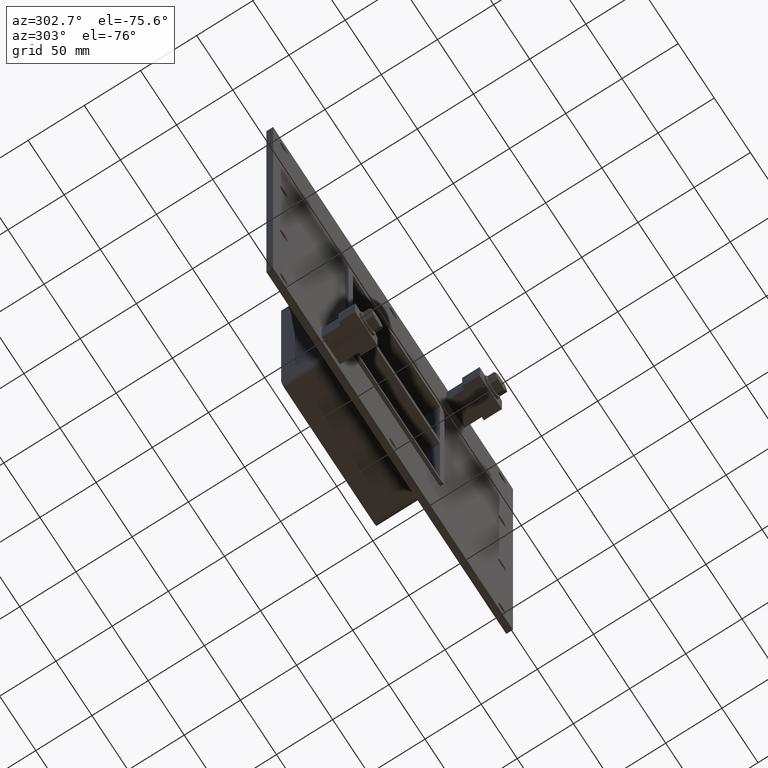
[diagram: clean part render]
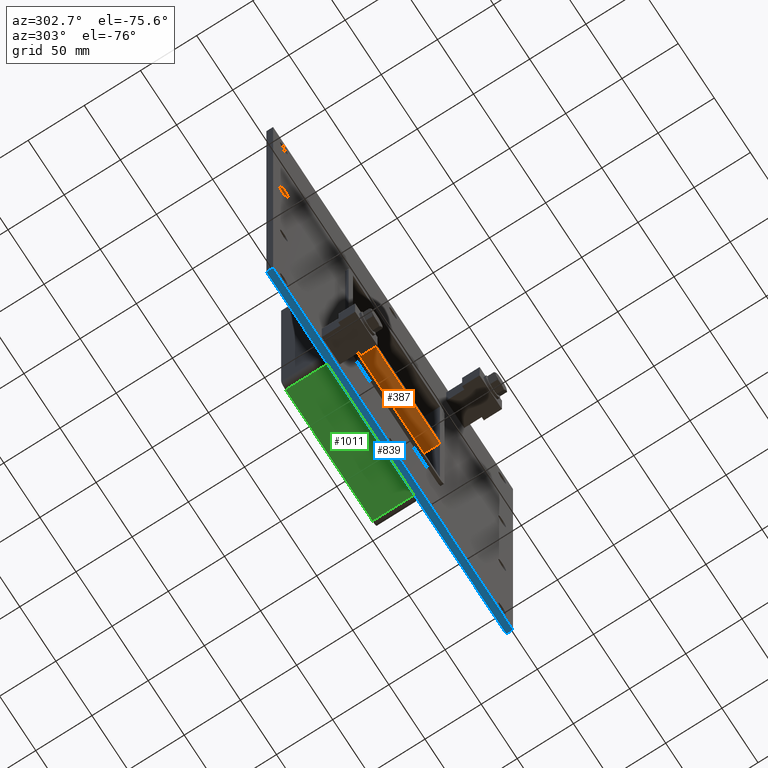
[diagram: same view with three faces highlighted in distinct colors, each labeled with its STEP entity id]
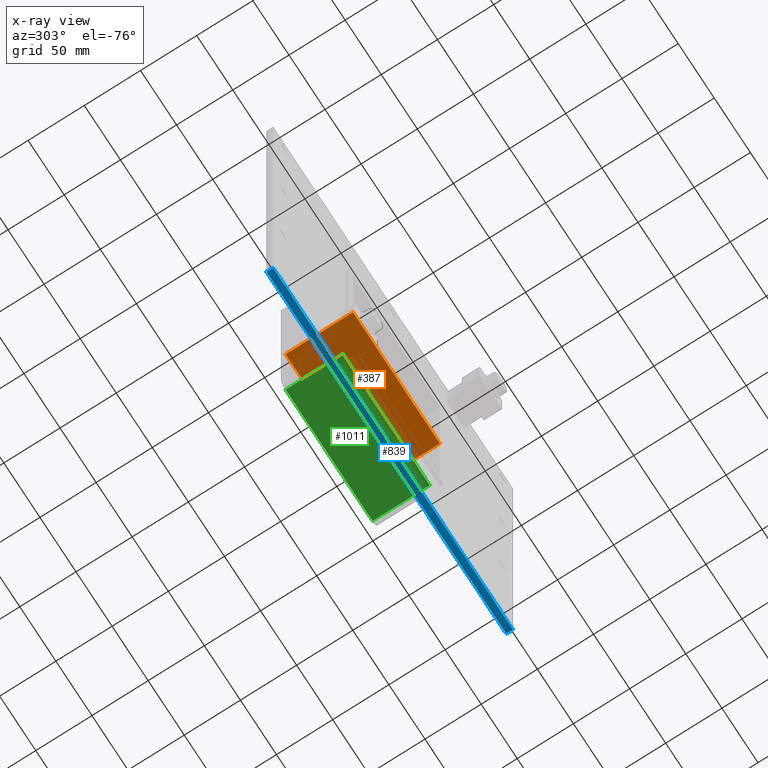
[diagram: x-ray of the same camera — body ghosted, the three highlighted faces saturated]
A machine part, auxiliary view with three faces highlighted in distinct colors.
The next image is the same camera in x-ray (body ghosted, the three faces saturated) — at least one of them is partly hidden behind the body in this view.
Their STEP definitions:

[orange] entity #387 — the highlighted planar face has unit normal (0, 0, -1).
#348=CARTESIAN_POINT('',(60.249999999996362,-3.0,-5.000000000010907));
#349=DIRECTION('',(0.0,0.0,-1.0));
#350=DIRECTION('',(-1.0,0.0,0.0));
#351=AXIS2_PLACEMENT_3D('',#348,#349,#350);
#352=PLANE('',#351);
#353=CARTESIAN_POINT('',(60.249999999996362,-3.0,-5.000000000010907));
#354=VERTEX_POINT('',#353);
#355=CARTESIAN_POINT('',(-60.249999999997627,-3.0,-5.000000000011369));
#356=VERTEX_POINT('',#355);
#357=CARTESIAN_POINT('',(60.249999999996362,-3.0,-5.000000000010907));
#358=DIRECTION('',(-1.0,0.0,0.0));
#359=VECTOR('',#358,120.49999999999399);
#360=LINE('',#357,#359);
#361=EDGE_CURVE('',#354,#356,#360,.T.);
#362=ORIENTED_EDGE('',*,*,#361,.T.);
#363=CARTESIAN_POINT('',(-60.249999999997627,57.0,-5.000000000011369));
#364=VERTEX_POINT('',#363);
#365=CARTESIAN_POINT('',(-60.25,57.000000000000007,-5.000000000011369));
#366=DIRECTION('',(0.0,-1.0,0.0));
#367=VECTOR('',#366,60.000000000000007);
#368=LINE('',#365,#367);
#369=EDGE_CURVE('',#364,#356,#368,.T.);
#370=ORIENTED_EDGE('',*,*,#369,.F.);
#371=CARTESIAN_POINT('',(60.249999999996369,57.0,-5.000000000010907));
#372=VERTEX_POINT('',#371);
#373=CARTESIAN_POINT('',(60.249999999996362,57.0,-5.000000000010907));
#374=DIRECTION('',(-1.0,0.0,0.0));
#375=VECTOR('',#374,120.49999999999399);
#376=LINE('',#373,#375);
#377=EDGE_CURVE('',#372,#364,#376,.T.);
#378=ORIENTED_EDGE('',*,*,#377,.F.);
#379=CARTESIAN_POINT('',(60.249999999999993,-3.0,-5.000000000010907));
#380=DIRECTION('',(0.0,1.0,0.0));
#381=VECTOR('',#380,60.000000000000007);
#382=LINE('',#379,#381);
#383=EDGE_CURVE('',#354,#372,#382,.T.);
#384=ORIENTED_EDGE('',*,*,#383,.F.);
#385=EDGE_LOOP('',(#362,#370,#378,#384));
#386=FACE_OUTER_BOUND('',#385,.T.);
#387=ADVANCED_FACE('',(#386),#352,.T.);

[blue] entity #839 — the highlighted planar face has unit normal (0, 0, -1).
#536=CARTESIAN_POINT('',(166.25,6.000000000000001,-212.00000000000003));
#537=VERTEX_POINT('',#536);
#544=CARTESIAN_POINT('',(-166.25,6.000000000000001,-212.00000000000003));
#545=VERTEX_POINT('',#544);
#546=CARTESIAN_POINT('',(166.24999999999997,6.000000000000001,-212.00000000000003));
#547=DIRECTION('',(-1.0,0.0,0.0));
#548=VECTOR('',#547,332.5);
#549=LINE('',#546,#548);
#550=EDGE_CURVE('',#537,#545,#549,.T.);
#676=CARTESIAN_POINT('',(-166.25,0.0,-212.00000000000003));
#677=VERTEX_POINT('',#676);
#684=CARTESIAN_POINT('',(166.24999999999997,0.0,-212.00000000000003));
#685=VERTEX_POINT('',#684);
#686=CARTESIAN_POINT('',(166.24999999999997,0.0,-212.00000000000003));
#687=DIRECTION('',(-1.0,0.0,0.0));
#688=VECTOR('',#687,332.5);
#689=LINE('',#686,#688);
#690=EDGE_CURVE('',#685,#677,#689,.T.);
#814=CARTESIAN_POINT('',(-166.25,0.0,-212.00000000000003));
#815=DIRECTION('',(0.0,1.0,0.0));
#816=VECTOR('',#815,6.000000000000001);
#817=LINE('',#814,#816);
#818=EDGE_CURVE('',#677,#545,#817,.T.);
#823=CARTESIAN_POINT('',(166.24999999999997,0.0,-212.00000000000003));
#824=DIRECTION('',(0.0,0.0,-1.0));
#825=DIRECTION('',(-1.0,0.0,0.0));
#826=AXIS2_PLACEMENT_3D('',#823,#824,#825);
#827=PLANE('',#826);
#828=ORIENTED_EDGE('',*,*,#690,.T.);
#829=ORIENTED_EDGE('',*,*,#818,.T.);
#830=ORIENTED_EDGE('',*,*,#550,.F.);
#831=CARTESIAN_POINT('',(166.24999999999997,0.0,-212.00000000000003));
#832=DIRECTION('',(0.0,1.0,0.0));
#833=VECTOR('',#832,6.000000000000001);
#834=LINE('',#831,#833);
#835=EDGE_CURVE('',#685,#537,#834,.T.);
#836=ORIENTED_EDGE('',*,*,#835,.F.);
#837=EDGE_LOOP('',(#828,#829,#830,#836));
#838=FACE_OUTER_BOUND('',#837,.T.);
#839=ADVANCED_FACE('',(#838),#827,.T.);

[green] entity #1011 — the highlighted planar face has unit normal (0, 0, -1).
#609=CARTESIAN_POINT('',(-60.25,6.000000000000001,-112.00000000000003));
#610=VERTEX_POINT('',#609);
#618=CARTESIAN_POINT('',(60.249999999999986,6.000000000000001,-112.00000000000003));
#619=VERTEX_POINT('',#618);
#620=CARTESIAN_POINT('',(60.249999999999986,6.000000000000001,-112.00000000000003));
#621=DIRECTION('',(-1.0,0.0,0.0));
#622=VECTOR('',#621,120.49999999999999);
#623=LINE('',#620,#622);
#624=EDGE_CURVE('',#619,#610,#623,.T.);
#938=CARTESIAN_POINT('',(60.249999999999986,57.0,-112.00000000000003));
#939=VERTEX_POINT('',#938);
#940=CARTESIAN_POINT('',(60.249999999999986,6.000000000000001,-112.00000000000003));
#941=DIRECTION('',(0.0,1.0,0.0));
#942=VECTOR('',#941,51.0);
#943=LINE('',#940,#942);
#944=EDGE_CURVE('',#619,#939,#943,.T.);
#988=CARTESIAN_POINT('',(66.249999999999986,0.0,-112.00000000000003));
#989=DIRECTION('',(0.0,0.0,-1.0));
#990=DIRECTION('',(-1.0,0.0,0.0));
#991=AXIS2_PLACEMENT_3D('',#988,#989,#990);
#992=PLANE('',#991);
#993=ORIENTED_EDGE('',*,*,#624,.T.);
#994=CARTESIAN_POINT('',(-60.249999999999993,57.0,-112.00000000000003));
#995=VERTEX_POINT('',#994);
#996=CARTESIAN_POINT('',(-60.25,57.0,-112.00000000000003));
#997=DIRECTION('',(0.0,-1.0,0.0));
#998=VECTOR('',#997,51.0);
#999=LINE('',#996,#998);
#1000=EDGE_CURVE('',#995,#610,#999,.T.);
#1001=ORIENTED_EDGE('',*,*,#1000,.F.);
#1002=CARTESIAN_POINT('',(60.249999999999979,57.0,-112.00000000000003));
#1003=DIRECTION('',(-1.0,0.0,0.0));
#1004=VECTOR('',#1003,120.49999999999997);
#1005=LINE('',#1002,#1004);
#1006=EDGE_CURVE('',#939,#995,#1005,.T.);
#1007=ORIENTED_EDGE('',*,*,#1006,.F.);
#1008=ORIENTED_EDGE('',*,*,#944,.F.);
#1009=EDGE_LOOP('',(#993,#1001,#1007,#1008));
#1010=FACE_OUTER_BOUND('',#1009,.T.);
#1011=ADVANCED_FACE('',(#1010),#992,.T.);